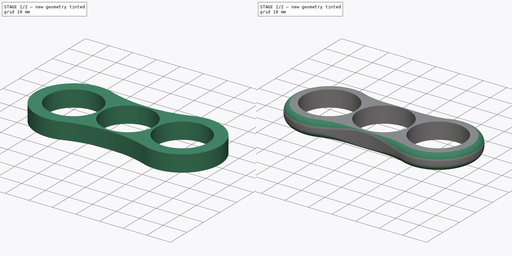
[diagram: build sequence overview — one tinted view per stage of 2, left to right]
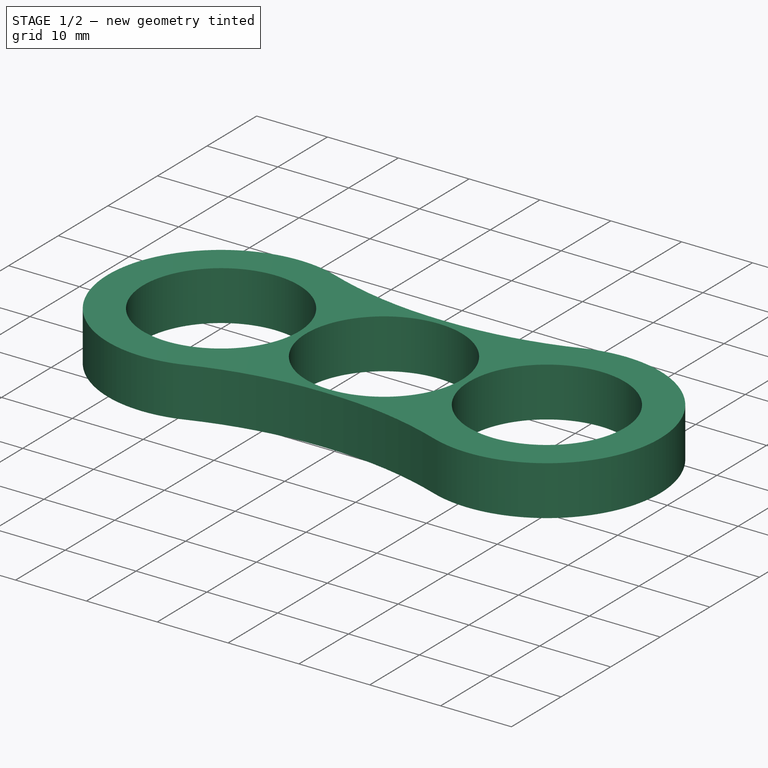
[diagram: stage 1 of 2 — iso view after this stage's code; geometry added in this stage tinted green]
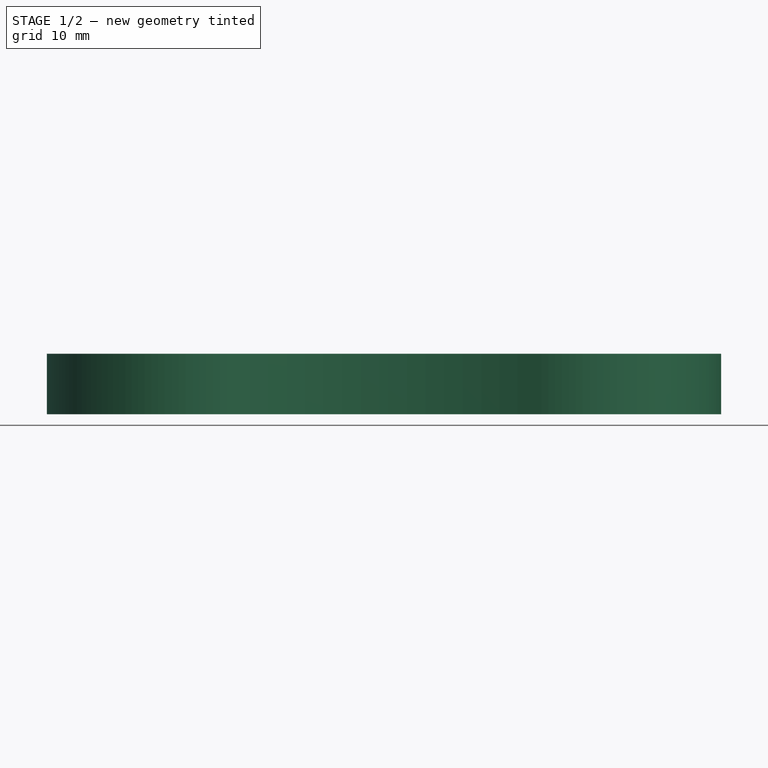
[diagram: stage 1 of 2 — front view after this stage's code; geometry added in this stage tinted green]
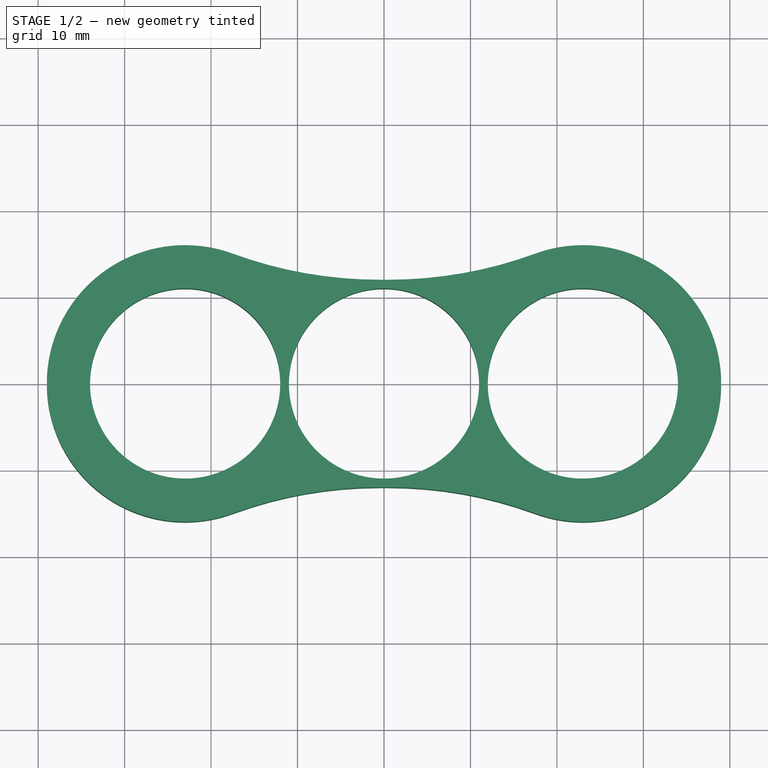
[diagram: stage 1 of 2 — top view after this stage's code; geometry added in this stage tinted green]
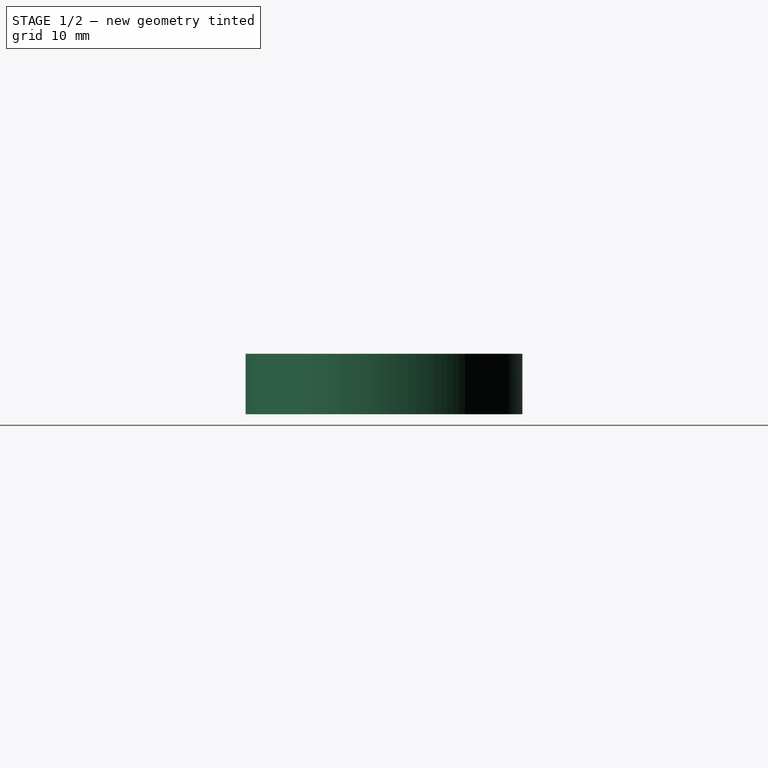
[diagram: stage 1 of 2 — right view after this stage's code; geometry added in this stage tinted green]
FCSTD DOCUMENT  (FreeCAD 0.16RUnknown)
Label: body-chi
License: All rights reserved
LicenseURL: http://en.wikipedia.org/wiki/All_rights_reserved
objects: Sketcher::SketchObject×1, PartDesign::Pad×1, Part::Fillet×1
note: 4 computed .brp shape members not serialized (recipe doc carries the construction recipe); baked Part::Feature solids carry a one-line shape summary decoded from their .brp

FEATURE [Sketcher::SketchObject] Sketch
  sketch-geometry (21):
    g0: ArcOfCircle CenterX=23 CenterY=0 CenterZ=0 NormalX=0 NormalY=0 NormalZ=1 Radius=16 StartAngle=4.36051 EndAngle=8.20586
    g1: ArcOfCircle CenterX=-23 CenterY=0 CenterZ=0 NormalX=0 NormalY=0 NormalZ=1 Radius=16 StartAngle=1.21892 EndAngle=5.06427
    g2: Circle CenterX=-23 CenterY=0 CenterZ=0 NormalX=0 NormalY=0 NormalZ=1 Radius=11
    g3: Circle CenterX=0 CenterY=0 CenterZ=0 NormalX=0 NormalY=0 NormalZ=1 Radius=11
    g4: Circle CenterX=23 CenterY=0 CenterZ=0 NormalX=0 NormalY=0 NormalZ=1 Radius=11
    g5: LineSegment [constr] StartX=-34 StartY=0 StartZ=0 EndX=-39 EndY=0 EndZ=0
    g6: LineSegment [constr] StartX=-23 StartY=11 StartZ=0 EndX=-23 EndY=0 EndZ=0
    g7: LineSegment [constr] StartX=-39 StartY=0 StartZ=0 EndX=-34 EndY=0 EndZ=0
    g8: GeomPoint [constr] X=0 Y=12 Z=0
    g9: GeomPoint [constr] X=0 Y=11 Z=0
    g10: GeomPoint [constr] X=-12 Y=0 Z=0
    g11: GeomPoint [constr] X=-11 Y=0 Z=0
    g12: LineSegment [constr] StartX=-12 StartY=0 StartZ=0 EndX=-11 EndY=0 EndZ=0
    g13: LineSegment [constr] StartX=0 StartY=11 StartZ=0 EndX=0 EndY=12 EndZ=0
    g14: LineSegment [constr] StartX=0 StartY=-12 StartZ=0 EndX=0 EndY=-11 EndZ=0
    g15: ArcOfCircle CenterX=-0.5 CenterY=-61.2813 CenterZ=0 NormalX=0 NormalY=0 NormalZ=1 Radius=49.2813 StartAngle=1.5708 EndAngle=1.92268
    g16: LineSegment StartX=-0.5 StartY=-12 StartZ=0 EndX=0.5 EndY=-12 EndZ=0
    g17: ArcOfCircle CenterX=0.5 CenterY=-61.2812 CenterZ=0 NormalX=0 NormalY=0 NormalZ=1 Radius=49.2812 StartAngle=1.21892 EndAngle=1.5708
    g18: LineSegment StartX=-0.5 StartY=12 StartZ=0 EndX=0.5 EndY=12 EndZ=0
    g19: ArcOfCircle CenterX=0.5 CenterY=61.2813 CenterZ=0 NormalX=0 NormalY=0 NormalZ=1 Radius=49.2813 StartAngle=4.71239 EndAngle=5.06427
    g20: ArcOfCircle CenterX=-0.5 CenterY=61.2813 CenterZ=0 NormalX=0 NormalY=0 NormalZ=1 Radius=49.2813 StartAngle=4.36051 EndAngle=4.71239
  constraints (62):
    c: Symmetric(g1,g0,g-2)
    c: Coincident(g2,g1)
    c: Coincident(g4,g0)
    c: Coincident(g3,g-1)
    c: Equal(g2,g3)
    c: Equal(g3,g4)
    c: Horizontal(g5)
    c: PointOnObject(g5,g2)
    c: PointOnObject(g5,g-1)
    c: Vertical(g6)
    c: Coincident(g6,g1)
    c: PointOnObject(g6,g2)
    c: DistanceY(g6,g6) = 11  'Bearing Outer Radius'
    c: PointOnObject(g7,g1)  'Constraint45'
    c: PointOnObject(g7,g2)  'Constraint42'
    c: Horizontal(g7)  'Constraint35'
    c: PointOnObject(g7,g-1)  'Constraint37'
    c: DistanceX(g5,g5) = 5  'Body Thickness Outer'
    c: Coincident(g7,g5)  'Constraint57'
    c: Equal(g0,g1)  'Constraint21'
    c: PointOnObject(g8,g-2)
    c: PointOnObject(g9,g3)
    c: PointOnObject(g9,g-2)
    c: PointOnObject(g10,g2)
    c: PointOnObject(g11,g3)
    c: PointOnObject(g11,g-1)
    c: PointOnObject(g10,g-1)
    c: Coincident(g12,g10)
    c: Coincident(g12,g11)
    c: Coincident(g13,g9)
    c: Coincident(g13,g8)
    c: DistanceX(g12,g12) = 1  'Bearing Distance'
    c: DistanceY(g13,g13) = 1  'Body Thickness Inner'
    c: Equal(g13,g14)  'Constraint36'
    c: PointOnObject(g14,g-2)
    c: PointOnObject(g14,g3)
    c: PointOnObject(g14,g-2)
    c: PointOnObject(g1,g-1)
    c: Coincident(g15,g1)
    c: Tangent(g1,g15)
    c: Coincident(g16,g15)
    c: Horizontal(g16)
    c: PointOnObject(g14,g16)
    c: Tangent(g16,g15)
    c: Coincident(g17,g16)
    c: Coincident(g17,g0)
    c: Tangent(g16,g17)
    c: Tangent(g0,g17)
    c: Symmetric(g16,g15,g-2)
    c: DistanceX(g16,g16) = 1  'Center - Width'
    c: Horizontal(g18)
    c: PointOnObject(g8,g18)
    c: Equal(g18,g16)
    c: Symmetric(g18,g18,g-2)
    c: Coincident(g19,g0)
    c: Coincident(g19,g18)
    c: Coincident(g20,g1)
    c: Coincident(g20,g18)
    c: Tangent(g18,g19)
    c: Tangent(g0,g19)
    c: Tangent(g1,g20)
    c: Tangent(g20,g18)
FEATURE [PartDesign::Pad] Pad
  Length = 7
  Length2 = 100
  Sketch = -> Sketch
  Type = 0
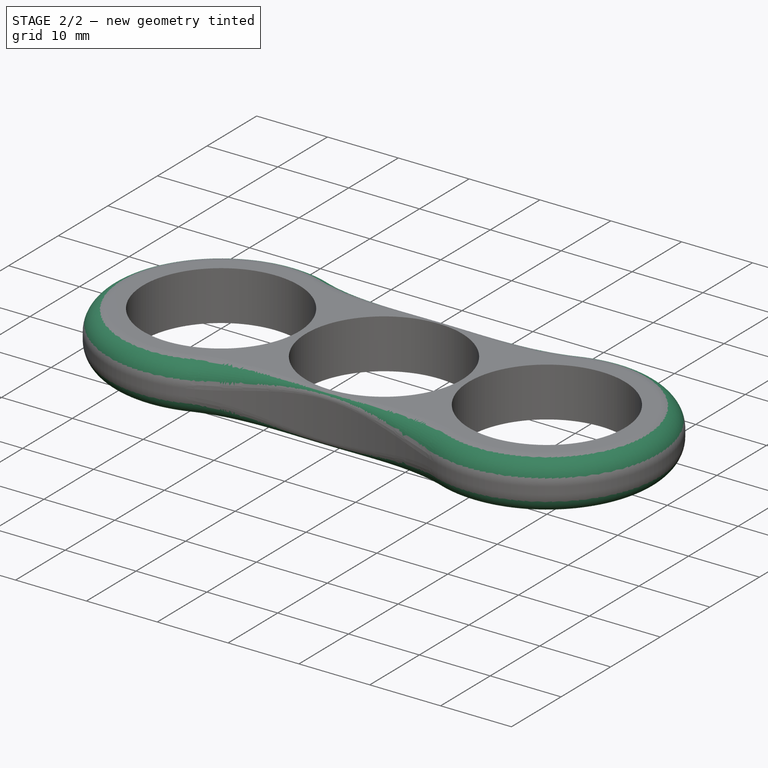
[diagram: stage 2 of 2 — iso view after this stage's code; geometry added in this stage tinted green]
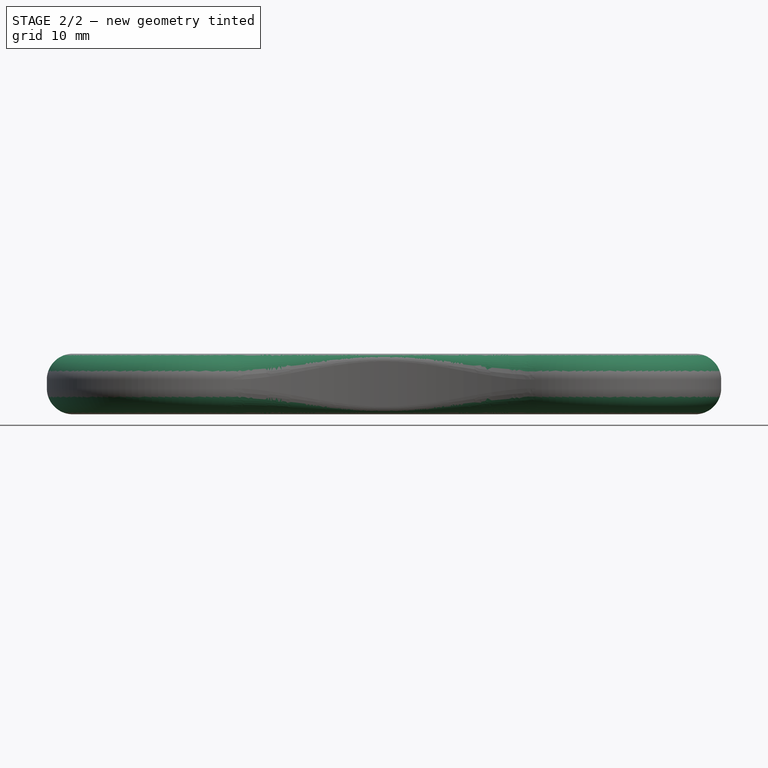
[diagram: stage 2 of 2 — front view after this stage's code; geometry added in this stage tinted green]
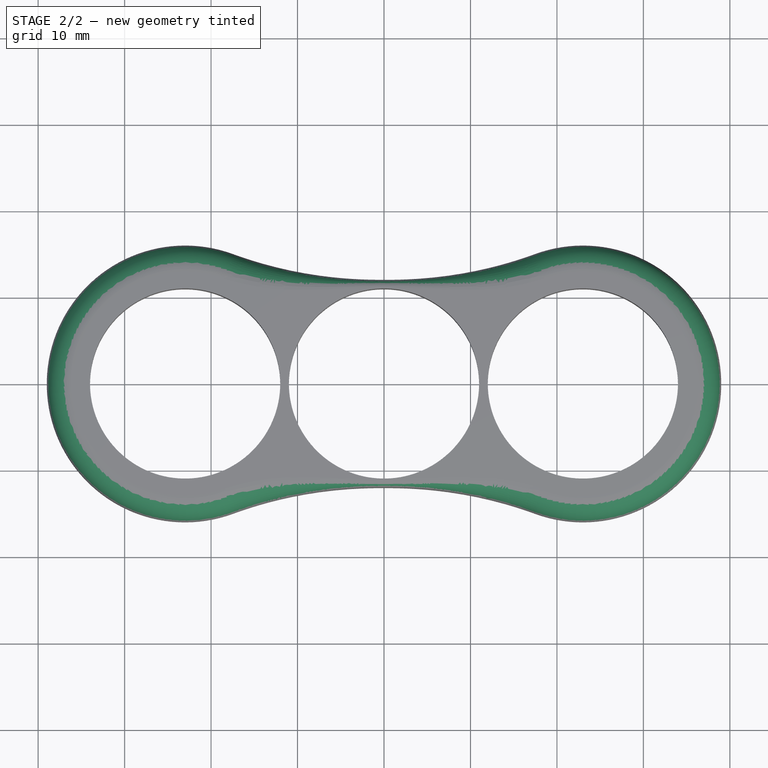
[diagram: stage 2 of 2 — top view after this stage's code; geometry added in this stage tinted green]
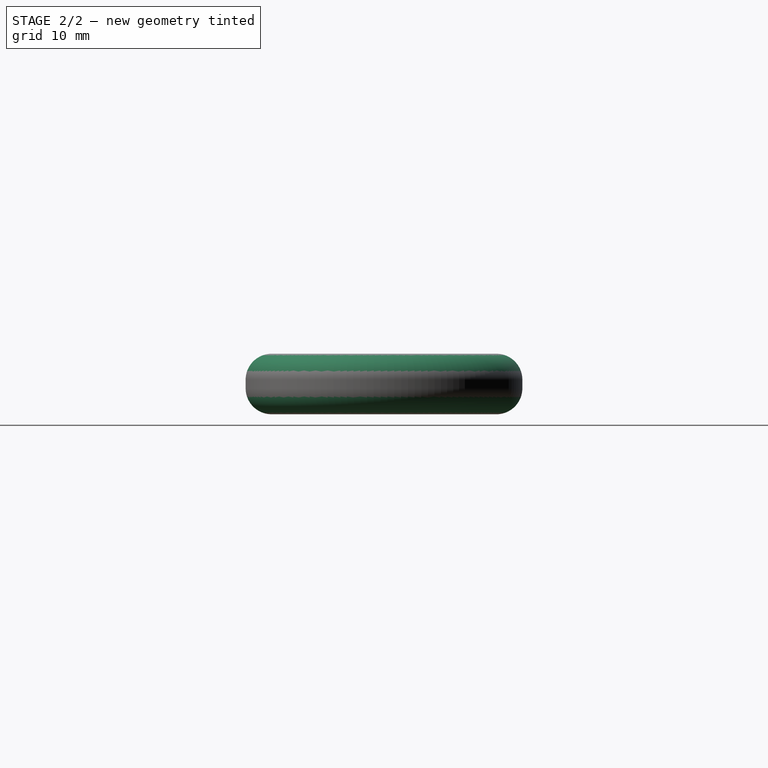
[diagram: stage 2 of 2 — right view after this stage's code; geometry added in this stage tinted green]
FEATURE [Part::Fillet] Fillet  label="Body"
  Base = -> Pad
  Edges = 8 edges: [Edge3 r=0.9,Edge4 r=0.9,Edge9 r=3,Edge10 r=3,Edge15 r=0.9,Edge16 r=0.9,Edge21 r=3,Edge22 r=3]
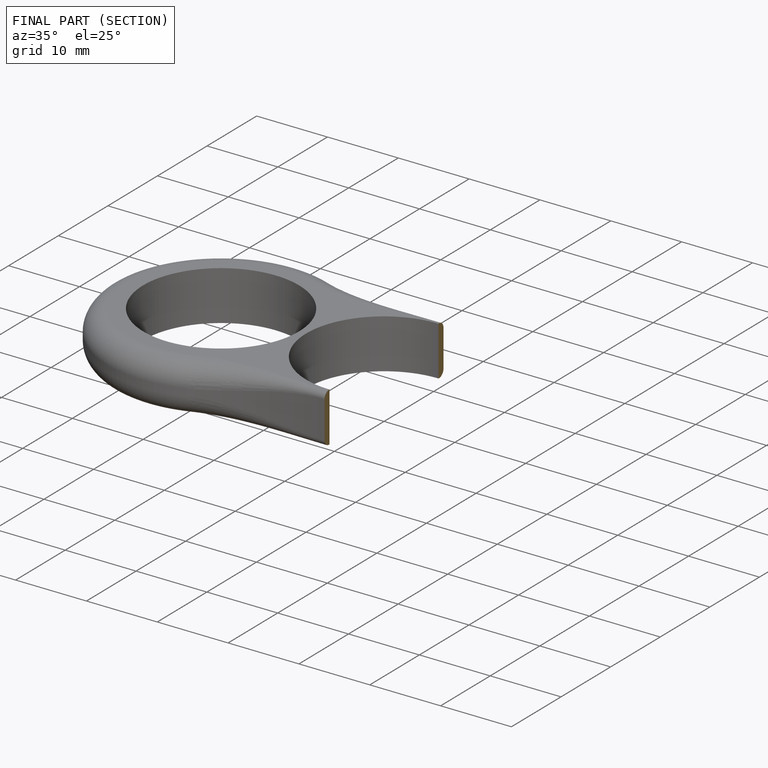
[diagram: finished part — half-section view (interior)]
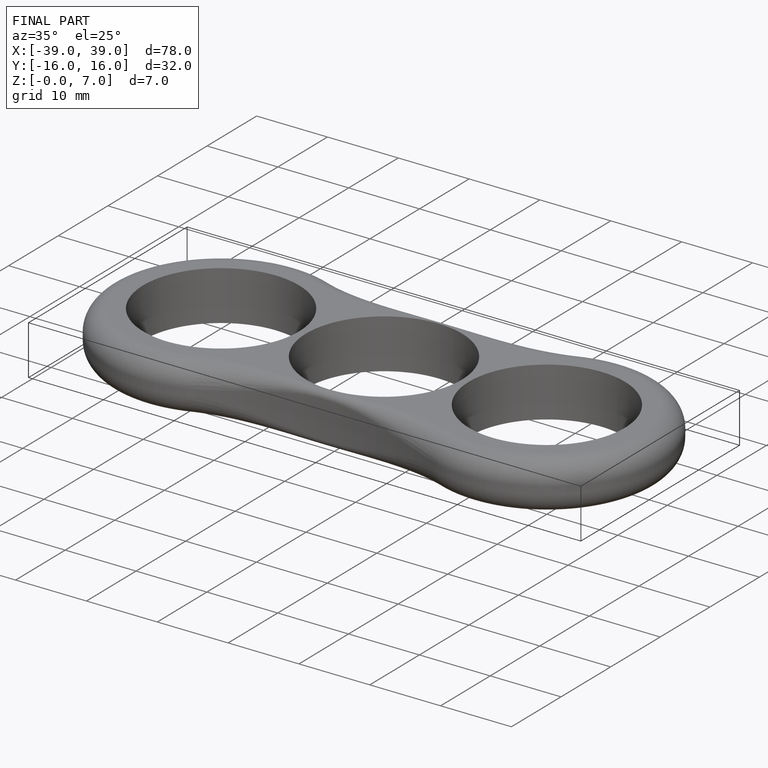
[diagram: finished part — iso view with bounding-box wireframe]
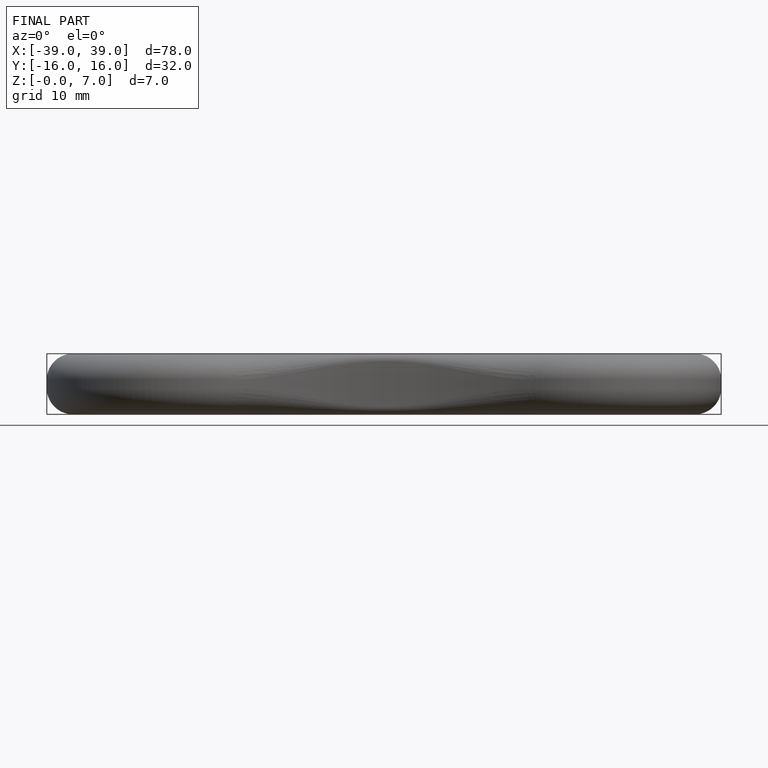
[diagram: finished part — front view with bounding-box wireframe]
